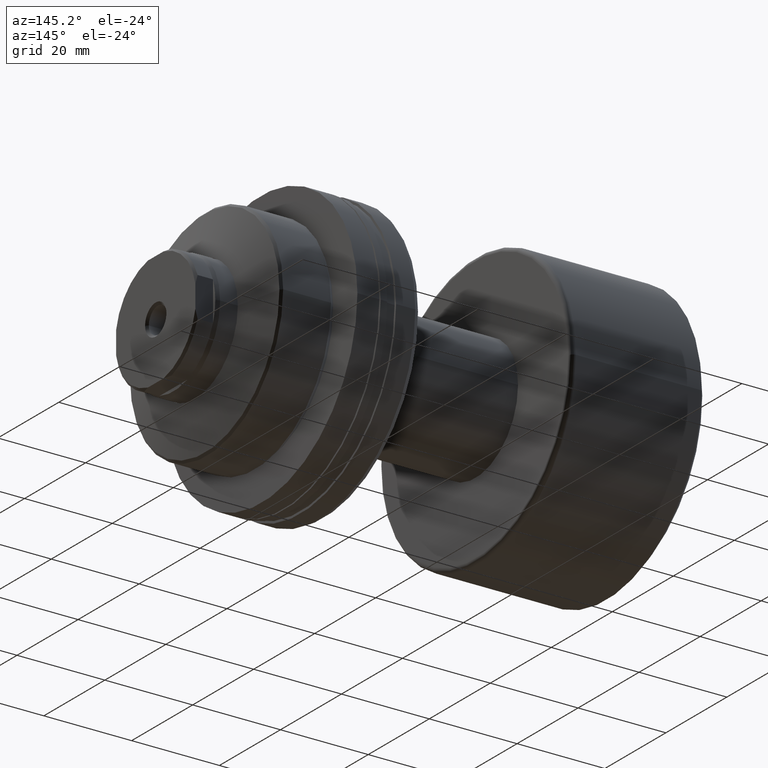
[diagram: clean part render]
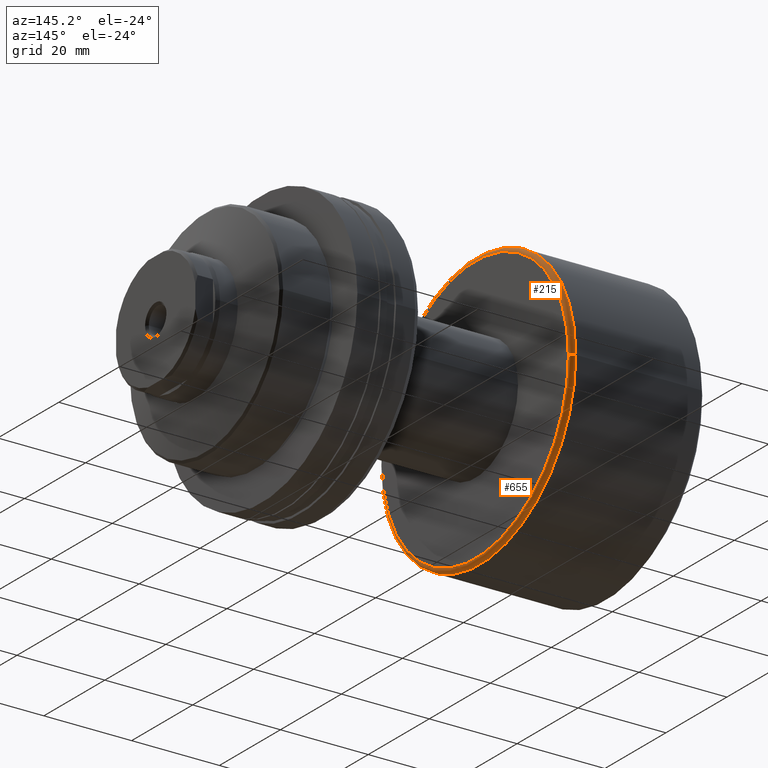
[diagram: same view with one multi-face feature highlighted, each face labeled with its STEP entity id]
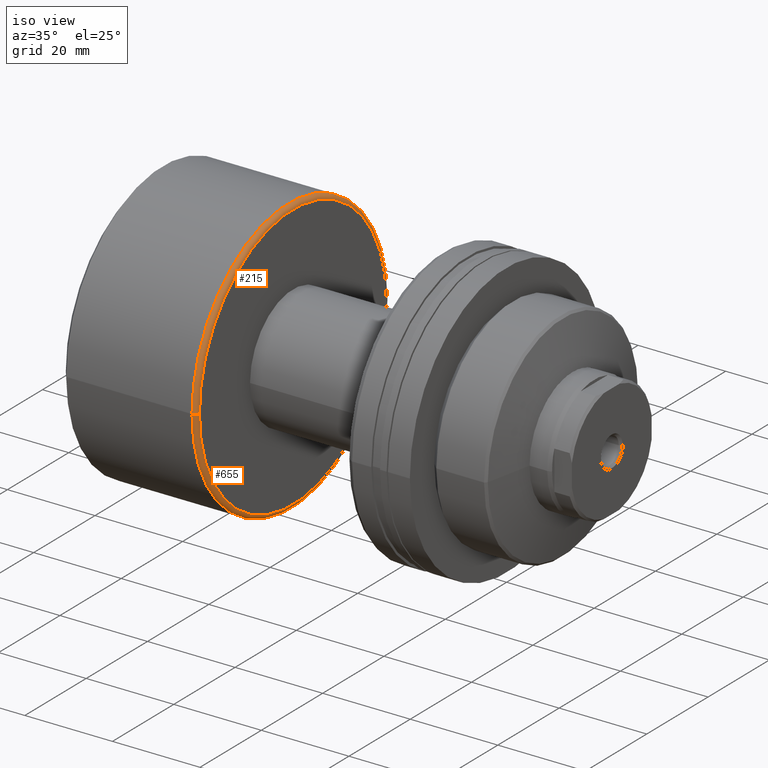
[diagram: same view with one multi-face feature highlighted, each face labeled with its STEP entity id]
A machine part, auxiliary view. The highlighted faces form ONE feature: a constant-radius fillet chain: 2 tangent blend faces with common blend radius 1 mm. The faces share edges in the B-rep.
A second angle (iso view) of the same feature is appended — it is thin or edge-on in the first view.
Their STEP definitions:
[1] entity #655 (Torus):
#8 = DIRECTION ( 'NONE',  ( 0.000000000000000000, -1.000000000000000000, 0.000000000000000000 ) ) ;
#40 = DIRECTION ( 'NONE',  ( 0.000000000000000000, 0.000000000000000000, -1.000000000000000000 ) ) ;
#46 = CARTESIAN_POINT ( 'NONE',  ( 31.19999999999999929, 30.50000000000000000, 3.796405077356795115E-15 ) ) ;
#157 = CARTESIAN_POINT ( 'NONE',  ( 31.19999999999999929, 3.336972044855484916E-16, 0.000000000000000000 ) ) ;
#224 = CARTESIAN_POINT ( 'NONE',  ( 31.19999999999999929, -30.50000000000000000, 0.000000000000000000 ) ) ;
#286 = DIRECTION ( 'NONE',  ( -1.000000000000000000, -1.069542322069065801E-17, -0.000000000000000000 ) ) ;
#326 = EDGE_CURVE ( 'NONE', #534, #1523, #2118, .T. ) ;
#397 = ORIENTED_EDGE ( 'NONE', *, *, #723, .T. ) ;
#424 = ORIENTED_EDGE ( 'NONE', *, *, #1018, .F. ) ;
#432 = ORIENTED_EDGE ( 'NONE', *, *, #326, .T. ) ;
#473 = AXIS2_PLACEMENT_3D ( 'NONE', #509, #286, #676 ) ;
#494 = DIRECTION ( 'NONE',  ( 1.309811581274509052E-33, -1.224646799147353207E-16, 1.000000000000000000 ) ) ;
#509 = CARTESIAN_POINT ( 'NONE',  ( 30.19999999999999929, 3.230017812648578475E-16, 0.000000000000000000 ) ) ;
#534 = VERTEX_POINT ( 'NONE', #224 ) ;
#655 = ADVANCED_FACE ( 'NONE', ( #1330 ), #1845, .T. ) ;
#676 = DIRECTION ( 'NONE',  ( 0.000000000000000000, -1.000000000000000000, 0.000000000000000000 ) ) ;
#723 = EDGE_CURVE ( 'NONE', #1830, #534, #1299, .T. ) ;
#778 = DIRECTION ( 'NONE',  ( -1.000000000000000000, 0.000000000000000000, 0.000000000000000000 ) ) ;
#985 = CARTESIAN_POINT ( 'NONE',  ( 30.19999999999999929, 0.000000000000000000, 0.000000000000000000 ) ) ;
#1018 = EDGE_CURVE ( 'NONE', #1735, #1523, #1933, .T. ) ;
#1066 = DIRECTION ( 'NONE',  ( -1.000000000000000000, -1.069542322069065801E-17, -0.000000000000000000 ) ) ;
#1151 = CARTESIAN_POINT ( 'NONE',  ( 30.19999999999999929, 31.50000000000000000, 3.857637417314162689E-15 ) ) ;
#1159 = CARTESIAN_POINT ( 'NONE',  ( 30.19999999999999929, -31.50000000000000000, 0.000000000000000000 ) ) ;
#1299 = CIRCLE ( 'NONE', #1960, 30.50000000000000000 ) ;
#1330 = FACE_OUTER_BOUND ( 'NONE', #1448, .T. ) ;
#1448 = EDGE_LOOP ( 'NONE', ( #2086, #397, #432, #424 ) ) ;
#1523 = VERTEX_POINT ( 'NONE', #1159 ) ;
#1529 = DIRECTION ( 'NONE',  ( -1.000000000000000000, -1.069542322069065801E-17, -0.000000000000000000 ) ) ;
#1599 = AXIS2_PLACEMENT_3D ( 'NONE', #2097, #494, #1917 ) ;
#1644 = CARTESIAN_POINT ( 'NONE',  ( 30.19999999999999929, -30.50000000000000000, 0.000000000000000000 ) ) ;
#1735 = VERTEX_POINT ( 'NONE', #1151 ) ;
#1808 = AXIS2_PLACEMENT_3D ( 'NONE', #1644, #40, #778 ) ;
#1830 = VERTEX_POINT ( 'NONE', #46 ) ;
#1845 = TOROIDAL_SURFACE ( 'NONE', #2221, 30.50000000000000000, 1.000000000000000888 ) ;
#1857 = DIRECTION ( 'NONE',  ( 1.069542322069065801E-17, -1.000000000000000000, 0.000000000000000000 ) ) ;
#1917 = DIRECTION ( 'NONE',  ( 0.000000000000000000, -1.000000000000000000, -1.224646799147357151E-16 ) ) ;
#1933 = CIRCLE ( 'NONE', #473, 31.50000000000000000 ) ;
#1956 = EDGE_CURVE ( 'NONE', #1830, #1735, #2157, .T. ) ;
#1960 = AXIS2_PLACEMENT_3D ( 'NONE', #157, #1066, #8 ) ;
#2086 = ORIENTED_EDGE ( 'NONE', *, *, #1956, .F. ) ;
#2097 = CARTESIAN_POINT ( 'NONE',  ( 30.19999999999999929, 30.50000000000000000, 3.735172737399427541E-15 ) ) ;
#2118 = CIRCLE ( 'NONE', #1808, 1.000000000000000888 ) ;
#2157 = CIRCLE ( 'NONE', #1599, 1.000000000000000888 ) ;
#2221 = AXIS2_PLACEMENT_3D ( 'NONE', #985, #1529, #1857 ) ;
[2] entity #215 (Torus):
#40 = DIRECTION ( 'NONE',  ( 0.000000000000000000, 0.000000000000000000, -1.000000000000000000 ) ) ;
#46 = CARTESIAN_POINT ( 'NONE',  ( 31.19999999999999929, 30.50000000000000000, 3.796405077356795115E-15 ) ) ;
#148 = CARTESIAN_POINT ( 'NONE',  ( 31.19999999999999929, 3.336972044855484916E-16, 0.000000000000000000 ) ) ;
#215 = ADVANCED_FACE ( 'NONE', ( #1844 ), #2111, .T. ) ;
#224 = CARTESIAN_POINT ( 'NONE',  ( 31.19999999999999929, -30.50000000000000000, 0.000000000000000000 ) ) ;
#326 = EDGE_CURVE ( 'NONE', #534, #1523, #2118, .T. ) ;
#363 = DIRECTION ( 'NONE',  ( -1.000000000000000000, -1.069542322069065801E-17, -0.000000000000000000 ) ) ;
#494 = DIRECTION ( 'NONE',  ( 1.309811581274509052E-33, -1.224646799147353207E-16, 1.000000000000000000 ) ) ;
#534 = VERTEX_POINT ( 'NONE', #224 ) ;
#566 = DIRECTION ( 'NONE',  ( -1.000000000000000000, -1.069542322069065801E-17, -0.000000000000000000 ) ) ;
#568 = ORIENTED_EDGE ( 'NONE', *, *, #2094, .F. ) ;
#778 = DIRECTION ( 'NONE',  ( -1.000000000000000000, 0.000000000000000000, 0.000000000000000000 ) ) ;
#801 = CARTESIAN_POINT ( 'NONE',  ( 30.19999999999999929, 0.000000000000000000, 0.000000000000000000 ) ) ;
#949 = CIRCLE ( 'NONE', #1621, 30.50000000000000000 ) ;
#1151 = CARTESIAN_POINT ( 'NONE',  ( 30.19999999999999929, 31.50000000000000000, 3.857637417314162689E-15 ) ) ;
#1157 = CARTESIAN_POINT ( 'NONE',  ( 30.19999999999999929, 3.230017812648578475E-16, 0.000000000000000000 ) ) ;
#1159 = CARTESIAN_POINT ( 'NONE',  ( 30.19999999999999929, -31.50000000000000000, 0.000000000000000000 ) ) ;
#1214 = ORIENTED_EDGE ( 'NONE', *, *, #1956, .T. ) ;
#1452 = AXIS2_PLACEMENT_3D ( 'NONE', #1157, #2043, #1868 ) ;
#1501 = EDGE_LOOP ( 'NONE', ( #1820, #1214, #568, #2089 ) ) ;
#1522 = EDGE_CURVE ( 'NONE', #534, #1830, #949, .T. ) ;
#1523 = VERTEX_POINT ( 'NONE', #1159 ) ;
#1599 = AXIS2_PLACEMENT_3D ( 'NONE', #2097, #494, #1917 ) ;
#1621 = AXIS2_PLACEMENT_3D ( 'NONE', #148, #363, #1643 ) ;
#1643 = DIRECTION ( 'NONE',  ( 0.000000000000000000, -1.000000000000000000, 0.000000000000000000 ) ) ;
#1644 = CARTESIAN_POINT ( 'NONE',  ( 30.19999999999999929, -30.50000000000000000, 0.000000000000000000 ) ) ;
#1666 = CIRCLE ( 'NONE', #1452, 31.50000000000000000 ) ;
#1735 = VERTEX_POINT ( 'NONE', #1151 ) ;
#1808 = AXIS2_PLACEMENT_3D ( 'NONE', #1644, #40, #778 ) ;
#1820 = ORIENTED_EDGE ( 'NONE', *, *, #1522, .T. ) ;
#1830 = VERTEX_POINT ( 'NONE', #46 ) ;
#1844 = FACE_OUTER_BOUND ( 'NONE', #1501, .T. ) ;
#1868 = DIRECTION ( 'NONE',  ( 0.000000000000000000, -1.000000000000000000, 0.000000000000000000 ) ) ;
#1917 = DIRECTION ( 'NONE',  ( 0.000000000000000000, -1.000000000000000000, -1.224646799147357151E-16 ) ) ;
#1956 = EDGE_CURVE ( 'NONE', #1830, #1735, #2157, .T. ) ;
#1973 = DIRECTION ( 'NONE',  ( 1.069542322069065801E-17, -1.000000000000000000, 0.000000000000000000 ) ) ;
#2043 = DIRECTION ( 'NONE',  ( -1.000000000000000000, -1.069542322069065801E-17, -0.000000000000000000 ) ) ;
#2089 = ORIENTED_EDGE ( 'NONE', *, *, #326, .F. ) ;
#2094 = EDGE_CURVE ( 'NONE', #1523, #1735, #1666, .T. ) ;
#2097 = CARTESIAN_POINT ( 'NONE',  ( 30.19999999999999929, 30.50000000000000000, 3.735172737399427541E-15 ) ) ;
#2111 = TOROIDAL_SURFACE ( 'NONE', #2314, 30.50000000000000000, 1.000000000000000888 ) ;
#2118 = CIRCLE ( 'NONE', #1808, 1.000000000000000888 ) ;
#2157 = CIRCLE ( 'NONE', #1599, 1.000000000000000888 ) ;
#2314 = AXIS2_PLACEMENT_3D ( 'NONE', #801, #566, #1973 ) ;